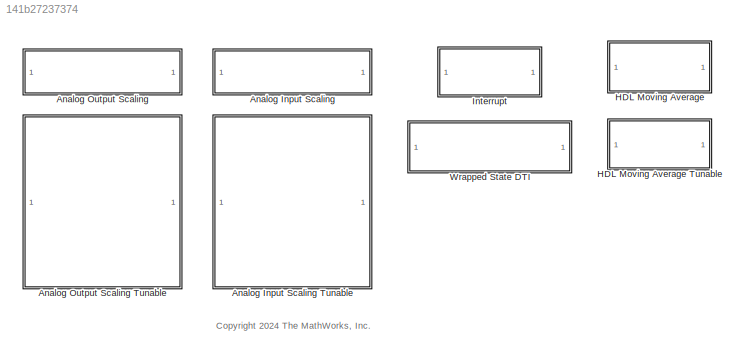
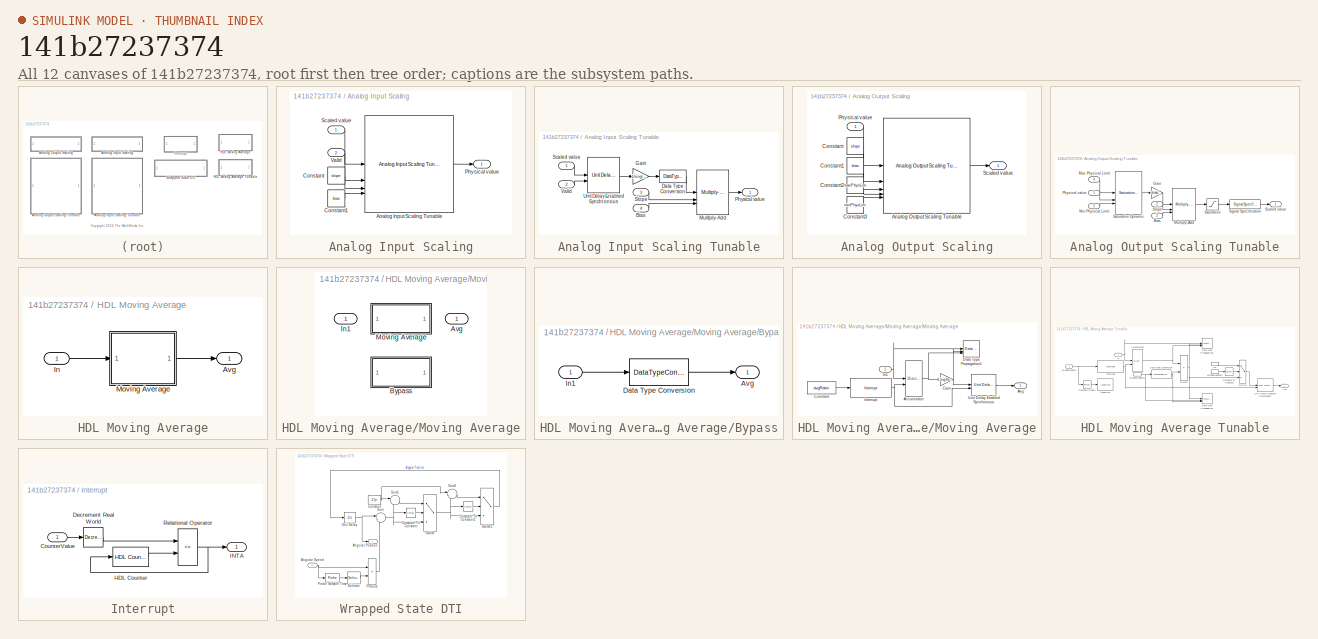
[diagram: thumbnail index - all 12 canvases of the model, root first then tree order]
MODEL slx_141b27237374
KIND library
CONFIG AbsTol = auto
CONFIG EnableMultiTasking = off
CONFIG FixedStep = auto
CONFIG MaxStep = auto
CONFIG MinStep = auto
CONFIG RelTol = 1e-3
CONFIG SampleTimeConstraint = Unconstrained
CONFIG SolverName = VariableStepAuto
CONFIG StartTime = 0.0
CONFIG StopTime = 10.0
BLOCK [SubSystem] Analog Input Scaling
  TreatAsAtomicUnit = on
BLOCK [SubSystem] Analog Input Scaling Tunable
BLOCK [Inport] Analog Input Scaling Tunable/Bias
  Port = 4
BLOCK [DataTypeConversion] Analog Input Scaling Tunable/Data Type Conversion
  RndMeth = Floor
  SaturateOnIntegerOverflow = off
BLOCK [Gain] Analog Input Scaling Tunable/Gain
  Gain = 1/single(intmax('int16'))
BLOCK [Reference] Analog Input Scaling Tunable/Multiply-Add  REF=hdlsllib/HDL Operations/Multiply-Add
  SourceBlock = hdlsllib/HDL Operations/Multiply-Add
  SourceType = Multiply-Add
BLOCK [Outport] Analog Input Scaling Tunable/Physical value
BLOCK [Inport] Analog Input Scaling Tunable/Scaled value
BLOCK [Inport] Analog Input Scaling Tunable/Slope
  Port = 3
BLOCK [Reference] Analog Input Scaling Tunable/Unit Delay Enabled Synchronous  REF=hdlsllib/Discrete/Unit Delay Enabled
Synchronous
  SourceBlock = hdlsllib/Discrete/Unit Delay Enabled\nSynchronous
  SourceType = Unit Delay Enabled Synchronous
BLOCK [Inport] Analog Input Scaling Tunable/Valid
  Port = 2
BLOCK [Reference] Analog Input Scaling/Analog Input Scaling Tunable  REF=$bdroot/Analog Input Scaling Tunable
  SourceBlock = $bdroot/Analog Input Scaling Tunable
  SourceType = SubSystem
BLOCK [Constant] Analog Input Scaling/Constant
  SampleTime = -1
  Value = slope
BLOCK [Constant] Analog Input Scaling/Constant1
  SampleTime = -1
  Value = bias
BLOCK [Outport] Analog Input Scaling/Physical value
BLOCK [Inport] Analog Input Scaling/Scaled value
BLOCK [Inport] Analog Input Scaling/Valid
  Port = 2
BLOCK [SubSystem] Analog Output Scaling
  TreatAsAtomicUnit = on
BLOCK [SubSystem] Analog Output Scaling Tunable
BLOCK [Inport] Analog Output Scaling Tunable/Bias
  Port = 3
BLOCK [Gain] Analog Output Scaling Tunable/Gain
  Gain = intmax('int16')
BLOCK [Inport] Analog Output Scaling Tunable/Max Physical Limit
  Port = 4
BLOCK [Inport] Analog Output Scaling Tunable/Min Physical Limit
  Port = 5
BLOCK [Reference] Analog Output Scaling Tunable/Multiply-Add  REF=hdlsllib/HDL Operations/Multiply-Add
  SourceBlock = hdlsllib/HDL Operations/Multiply-Add
  SourceType = Multiply-Add
BLOCK [Inport] Analog Output Scaling Tunable/Physical value
BLOCK [Saturate] Analog Output Scaling Tunable/Saturation
  LowerLimit = intmin('int16')
  UpperLimit = intmax('int16')
BLOCK [Reference] Analog Output Scaling Tunable/Saturation Dynamic  REF=simulink/Discontinuities/Saturation
Dynamic
  SourceBlock = simulink/Discontinuities/Saturation\nDynamic
  SourceType = Saturation Dynamic
BLOCK [Outport] Analog Output Scaling Tunable/Scaled value
BLOCK [SignalSpecification] Analog Output Scaling Tunable/Signal Specification
  OutDataTypeStr = int16
BLOCK [Inport] Analog Output Scaling Tunable/Slope
  Port = 2
BLOCK [Reference] Analog Output Scaling/Analog Output Scaling Tunable  REF=$bdroot/Analog Output Scaling Tunable
  SourceBlock = $bdroot/Analog Output Scaling Tunable
  SourceType = SubSystem
BLOCK [Constant] Analog Output Scaling/Constant
  OutDataTypeStr = Inherit: Inherit via back propagation
  SampleTime = -1
  Value = slope
BLOCK [Constant] Analog Output Scaling/Constant1
  OutDataTypeStr = Inherit: Inherit via back propagation
  SampleTime = -1
  Value = bias
BLOCK [Constant] Analog Output Scaling/Constant2
  OutDataTypeStr = Inherit: Inherit via back propagation
  SampleTime = -1
  Value = maxPhysLim
BLOCK [Constant] Analog Output Scaling/Constant3
  OutDataTypeStr = Inherit: Inherit via back propagation
  SampleTime = -1
  Value = minPhysLim
BLOCK [Inport] Analog Output Scaling/Physical value
BLOCK [Outport] Analog Output Scaling/Scaled value
BLOCK [SubSystem] HDL Moving Average
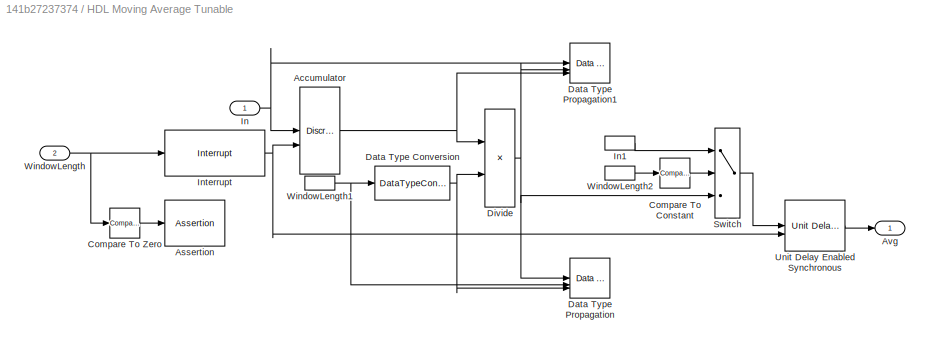
BLOCK [SubSystem] HDL Moving Average Tunable
BLOCK [DiscreteIntegrator] HDL Moving Average Tunable/Accumulator
  ExternalReset = falling
  ICPrevOutput = DiscIntNeverNeededParam
  ICPrevScaledInput = DiscIntNeverNeededParam
  InitialConditionSetting = Auto
  IntegratorMethod = Accumulation: Backward Euler
  OutDataTypeStr = Inherit: Inherit via back propagation
  SampleTime = -1
BLOCK [Assertion] HDL Moving Average Tunable/Assertion
BLOCK [Outport] HDL Moving Average Tunable/Avg
BLOCK [Reference] HDL Moving Average Tunable/Compare To Constant  REF=simulink/Logic and Bit
Operations/Compare
To Constant
  SourceBlock = simulink/Logic and Bit\nOperations/Compare\nTo Constant
  SourceType = Compare To Constant
BLOCK [Reference] HDL Moving Average Tunable/Compare To Zero  REF=simulink/Logic and Bit
Operations/Compare
To Zero
  SourceBlock = simulink/Logic and Bit\nOperations/Compare\nTo Zero
  SourceType = Compare To Zero
BLOCK [DataTypeConversion] HDL Moving Average Tunable/Data Type Conversion
  RndMeth = Floor
  SaturateOnIntegerOverflow = off
BLOCK [Reference] HDL Moving Average Tunable/Data Type Propagation  REF=simulink/Signal
Attributes/Data Type
Propagation
  SourceBlock = simulink/Signal\nAttributes/Data Type\nPropagation
  SourceType = Data Type Propagation
BLOCK [Reference] HDL Moving Average Tunable/Data Type Propagation1  REF=simulink/Signal
Attributes/Data Type
Propagation
  SourceBlock = simulink/Signal\nAttributes/Data Type\nPropagation
  SourceType = Data Type Propagation
BLOCK [Product] HDL Moving Average Tunable/Divide
  Inputs = */
  OutDataTypeStr = Inherit: Inherit via back propagation
  RndMeth = Simplest
  SaturateOnIntegerOverflow = on
BLOCK [Inport] HDL Moving Average Tunable/In
BLOCK [InportShadow] HDL Moving Average Tunable/In1
BLOCK [Reference] HDL Moving Average Tunable/Interrupt  REF=$bdroot/Interrupt
  SourceBlock = $bdroot/Interrupt
  SourceType = SubSystem
BLOCK [Switch] HDL Moving Average Tunable/Switch
  Criteria = u2 ~= 0
  SaturateOnIntegerOverflow = off
BLOCK [Reference] HDL Moving Average Tunable/Unit Delay Enabled Synchronous  REF=hdlsllib/Discrete/Unit Delay Enabled
Synchronous
  SourceBlock = hdlsllib/Discrete/Unit Delay Enabled\nSynchronous
  SourceType = Unit Delay Enabled Synchronous
BLOCK [Inport] HDL Moving Average Tunable/WindowLength
  Port = 2
BLOCK [InportShadow] HDL Moving Average Tunable/WindowLength1
  Port = 2
BLOCK [InportShadow] HDL Moving Average Tunable/WindowLength2
  Port = 2
BLOCK [Outport] HDL Moving Average/Avg
BLOCK [Inport] HDL Moving Average/In
BLOCK [SubSystem] HDL Moving Average/Moving Average
  Variant = on
  VariantControl = Moving Average
BLOCK [Outport] HDL Moving Average/Moving Average/Avg
BLOCK [SubSystem] HDL Moving Average/Moving Average/Bypass
  VariantControl = avgRatio == 1
BLOCK [Outport] HDL Moving Average/Moving Average/Bypass/Avg
BLOCK [DataTypeConversion] HDL Moving Average/Moving Average/Bypass/Data Type Conversion
  RndMeth = Floor
  SaturateOnIntegerOverflow = off
BLOCK [Inport] HDL Moving Average/Moving Average/Bypass/In1
BLOCK [Inport] HDL Moving Average/Moving Average/In1
BLOCK [SubSystem] HDL Moving Average/Moving Average/Moving Average
  VariantControl = avgRatio > 1
BLOCK [DiscreteIntegrator] HDL Moving Average/Moving Average/Moving Average/Accumulator
  ExternalReset = falling
  ICPrevOutput = DiscIntNeverNeededParam
  ICPrevScaledInput = DiscIntNeverNeededParam
  InitialConditionSetting = Auto
  IntegratorMethod = Accumulation: Backward Euler
  OutDataTypeStr = Inherit: Inherit via back propagation
  SampleTime = -1
BLOCK [Outport] HDL Moving Average/Moving Average/Moving Average/Avg
BLOCK [Constant] HDL Moving Average/Moving Average/Moving Average/Constant
  LockScale = on
  OutDataTypeStr = uint16
  SampleTime = -1
  Value = avgRatio
BLOCK [Reference] HDL Moving Average/Moving Average/Moving Average/Data Type Propagation1  REF=simulink/Signal
Attributes/Data Type
Propagation
  SourceBlock = simulink/Signal\nAttributes/Data Type\nPropagation
  SourceType = Data Type Propagation
BLOCK [Gain] HDL Moving Average/Moving Average/Moving Average/Gain
  Gain = 1/avgRatio
  LockScale = on
  OutDataTypeStr = Inherit: Inherit via back propagation
BLOCK [Inport] HDL Moving Average/Moving Average/Moving Average/In1
BLOCK [Reference] HDL Moving Average/Moving Average/Moving Average/Interrupt  REF=$bdroot/Interrupt
  SourceBlock = $bdroot/Interrupt
  SourceType = SubSystem
BLOCK [Reference] HDL Moving Average/Moving Average/Moving Average/Unit Delay Enabled Synchronous  REF=hdlsllib/Discrete/Unit Delay Enabled
Synchronous
  SourceBlock = hdlsllib/Discrete/Unit Delay Enabled\nSynchronous
  SourceType = Unit Delay Enabled Synchronous
BLOCK [SubSystem] Interrupt
  TreatAsAtomicUnit = on
BLOCK [Inport] Interrupt/CounterValue
BLOCK [Reference] Interrupt/Decrement Real World  REF=hdlsllib/Math
Operations/Decrement
Real World
  SourceBlock = hdlsllib/Math\nOperations/Decrement\nReal World
  SourceType = Real World Value Decrement
BLOCK [Reference] Interrupt/HDL Counter  REF=hdlsllib/Sources/HDL Counter
  SourceBlock = hdlsllib/Sources/HDL Counter
  SourceType = HDL Counter
BLOCK [Outport] Interrupt/INTA
  VectorParamsAs1DForOutWhenUnconnected = off
BLOCK [RelationalOperator] Interrupt/Relational Operator
  InputSameDT = off
  Operator = <=
  OutDataTypeStr = boolean
  RndMeth = Simplest
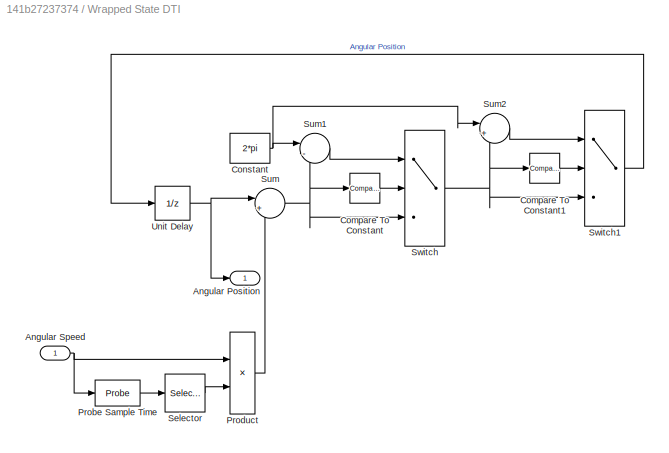
BLOCK [SubSystem] Wrapped State DTI
BLOCK [Outport] Wrapped State DTI/Angular Position
BLOCK [Inport] Wrapped State DTI/Angular Speed
BLOCK [Reference] Wrapped State DTI/Compare To Constant  REF=simulink/Logic and Bit
Operations/Compare
To Constant
  SourceBlock = simulink/Logic and Bit\nOperations/Compare\nTo Constant
  SourceType = Compare To Constant
BLOCK [Reference] Wrapped State DTI/Compare To Constant1  REF=simulink/Logic and Bit
Operations/Compare
To Constant
  SourceBlock = simulink/Logic and Bit\nOperations/Compare\nTo Constant
  SourceType = Compare To Constant
BLOCK [Constant] Wrapped State DTI/Constant
  OutDataTypeStr = Inherit: Inherit via back propagation
  SampleTime = -1
  Value = 2*pi
BLOCK [Probe] Wrapped State DTI/Probe Sample Time
  ProbeComplexSignal = off
  ProbeSampleTimeDataType = Same as input
  ProbeWidth = off
BLOCK [Product] Wrapped State DTI/Product
BLOCK [Selector] Wrapped State DTI/Selector
  IndexOptions = Index vector (dialog)
  Indices = 1
  InputPortWidth = 2
  OutputSizes = 1
BLOCK [Sum] Wrapped State DTI/Sum
  Inputs = |++
BLOCK [Sum] Wrapped State DTI/Sum1
  Inputs = |-+
BLOCK [Sum] Wrapped State DTI/Sum2
  Inputs = |++
BLOCK [Switch] Wrapped State DTI/Switch
  Criteria = u2 > Threshold
  InputSameDT = off
  SaturateOnIntegerOverflow = off
BLOCK [Switch] Wrapped State DTI/Switch1
  Criteria = u2 > Threshold
  InputSameDT = off
  SaturateOnIntegerOverflow = off
BLOCK [UnitDelay] Wrapped State DTI/Unit Delay
  HasFrameUpgradeWarning = on
  SampleTime = -1
ANNOTATION (root): <copyright redacted>
LINE Analog Input Scaling Tunable/Bias:1 -> Analog Input Scaling Tunable/Multiply-Add:3
LINE Analog Input Scaling Tunable/Data Type Conversion:1 -> Analog Input Scaling Tunable/Multiply-Add:1
LINE Analog Input Scaling Tunable/Gain:1 -> Analog Input Scaling Tunable/Data Type Conversion:1
LINE Analog Input Scaling Tunable/Multiply-Add:1 -> Analog Input Scaling Tunable/Physical value:1
LINE Analog Input Scaling Tunable/Scaled value:1 -> Analog Input Scaling Tunable/Unit Delay Enabled Synchronous:1
LINE Analog Input Scaling Tunable/Slope:1 -> Analog Input Scaling Tunable/Multiply-Add:2
LINE Analog Input Scaling Tunable/Unit Delay Enabled Synchronous:1 -> Analog Input Scaling Tunable/Gain:1
LINE Analog Input Scaling Tunable/Valid:1 -> Analog Input Scaling Tunable/Unit Delay Enabled Synchronous:2
LINE Analog Input Scaling/Analog Input Scaling Tunable:1 -> Analog Input Scaling/Physical value:1
LINE Analog Input Scaling/Constant1:1 -> Analog Input Scaling/Analog Input Scaling Tunable:4
LINE Analog Input Scaling/Constant:1 -> Analog Input Scaling/Analog Input Scaling Tunable:3
LINE Analog Input Scaling/Scaled value:1 -> Analog Input Scaling/Analog Input Scaling Tunable:1
LINE Analog Input Scaling/Valid:1 -> Analog Input Scaling/Analog Input Scaling Tunable:2
LINE Analog Output Scaling Tunable/Bias:1 -> Analog Output Scaling Tunable/Multiply-Add:3
LINE Analog Output Scaling Tunable/Gain:1 -> Analog Output Scaling Tunable/Multiply-Add:1
LINE Analog Output Scaling Tunable/Max Physical Limit:1 -> Analog Output Scaling Tunable/Saturation Dynamic:1
LINE Analog Output Scaling Tunable/Min Physical Limit:1 -> Analog Output Scaling Tunable/Saturation Dynamic:3
LINE Analog Output Scaling Tunable/Multiply-Add:1 -> Analog Output Scaling Tunable/Saturation:1
LINE Analog Output Scaling Tunable/Physical value:1 -> Analog Output Scaling Tunable/Saturation Dynamic:2
LINE Analog Output Scaling Tunable/Saturation Dynamic:1 -> Analog Output Scaling Tunable/Gain:1
LINE Analog Output Scaling Tunable/Saturation:1 -> Analog Output Scaling Tunable/Signal Specification:1
LINE Analog Output Scaling Tunable/Signal Specification:1 -> Analog Output Scaling Tunable/Scaled value:1
LINE Analog Output Scaling Tunable/Slope:1 -> Analog Output Scaling Tunable/Multiply-Add:2
LINE Analog Output Scaling/Analog Output Scaling Tunable:1 -> Analog Output Scaling/Scaled value:1
LINE Analog Output Scaling/Constant1:1 -> Analog Output Scaling/Analog Output Scaling Tunable:3
LINE Analog Output Scaling/Constant2:1 -> Analog Output Scaling/Analog Output Scaling Tunable:4
LINE Analog Output Scaling/Constant3:1 -> Analog Output Scaling/Analog Output Scaling Tunable:5
LINE Analog Output Scaling/Constant:1 -> Analog Output Scaling/Analog Output Scaling Tunable:2
LINE Analog Output Scaling/Physical value:1 -> Analog Output Scaling/Analog Output Scaling Tunable:1
NET HDL Moving Average Tunable/Accumulator:1 -> HDL Moving Average Tunable/Data Type Propagation1:3, HDL Moving Average Tunable/Divide:1
LINE HDL Moving Average Tunable/Compare To Constant:1 -> HDL Moving Average Tunable/Switch:2
LINE HDL Moving Average Tunable/Compare To Zero:1 -> HDL Moving Average Tunable/Assertion:1
NET HDL Moving Average Tunable/Data Type Conversion:1 -> HDL Moving Average Tunable/Data Type Propagation:3, HDL Moving Average Tunable/Divide:2
NET HDL Moving Average Tunable/Divide:1 -> HDL Moving Average Tunable/Data Type Propagation1:2, HDL Moving Average Tunable/Data Type Propagation:1, HDL Moving Average Tunable/Switch:3
LINE HDL Moving Average Tunable/In1:1 -> HDL Moving Average Tunable/Switch:1
NET HDL Moving Average Tunable/In:1 -> HDL Moving Average Tunable/Accumulator:1, HDL Moving Average Tunable/Data Type Propagation1:1
NET HDL Moving Average Tunable/Interrupt:1 -> HDL Moving Average Tunable/Accumulator:2, HDL Moving Average Tunable/Unit Delay Enabled Synchronous:2
LINE HDL Moving Average Tunable/Switch:1 -> HDL Moving Average Tunable/Unit Delay Enabled Synchronous:1
LINE HDL Moving Average Tunable/Unit Delay Enabled Synchronous:1 -> HDL Moving Average Tunable/Avg:1
NET HDL Moving Average Tunable/WindowLength1:1 -> HDL Moving Average Tunable/Data Type Conversion:1, HDL Moving Average Tunable/Data Type Propagation:2
LINE HDL Moving Average Tunable/WindowLength2:1 -> HDL Moving Average Tunable/Compare To Constant:1
NET HDL Moving Average Tunable/WindowLength:1 -> HDL Moving Average Tunable/Compare To Zero:1, HDL Moving Average Tunable/Interrupt:1
LINE HDL Moving Average/In:1 -> HDL Moving Average/Moving Average:1
LINE HDL Moving Average/Moving Average/Bypass/Data Type Conversion:1 -> HDL Moving Average/Moving Average/Bypass/Avg:1
LINE HDL Moving Average/Moving Average/Bypass/In1:1 -> HDL Moving Average/Moving Average/Bypass/Data Type Conversion:1
NET HDL Moving Average/Moving Average/Moving Average/Accumulator:1 -> HDL Moving Average/Moving Average/Moving Average/Data Type Propagation1:3, HDL Moving Average/Moving Average/Moving Average/Gain:1
LINE HDL Moving Average/Moving Average/Moving Average/Constant:1 -> HDL Moving Average/Moving Average/Moving Average/Interrupt:1
NET HDL Moving Average/Moving Average/Moving Average/Gain:1 -> HDL Moving Average/Moving Average/Moving Average/Data Type Propagation1:2, HDL Moving Average/Moving Average/Moving Average/Unit Delay Enabled Synchronous:1
NET HDL Moving Average/Moving Average/Moving Average/In1:1 -> HDL Moving Average/Moving Average/Moving Average/Accumulator:1, HDL Moving Average/Moving Average/Moving Average/Data Type Propagation1:1
NET HDL Moving Average/Moving Average/Moving Average/Interrupt:1 -> HDL Moving Average/Moving Average/Moving Average/Accumulator:2, HDL Moving Average/Moving Average/Moving Average/Unit Delay Enabled Synchronous:2
LINE HDL Moving Average/Moving Average/Moving Average/Unit Delay Enabled Synchronous:1 -> HDL Moving Average/Moving Average/Moving Average/Avg:1
LINE HDL Moving Average/Moving Average:1 -> HDL Moving Average/Avg:1
LINE Interrupt/CounterValue:1 -> Interrupt/Decrement Real World:1
LINE Interrupt/Decrement Real World:1 -> Interrupt/Relational Operator:1
LINE Interrupt/HDL Counter:1 -> Interrupt/Relational Operator:2
NET Interrupt/Relational Operator:1 -> Interrupt/HDL Counter:1, Interrupt/INTA:1
NET Wrapped State DTI/Angular Speed:1 -> Wrapped State DTI/Probe Sample Time:1, Wrapped State DTI/Product:1
LINE Wrapped State DTI/Compare To Constant1:1 -> Wrapped State DTI/Switch1:2
LINE Wrapped State DTI/Compare To Constant:1 -> Wrapped State DTI/Switch:2
NET Wrapped State DTI/Constant:1 -> Wrapped State DTI/Sum1:1, Wrapped State DTI/Sum2:1
LINE Wrapped State DTI/Probe Sample Time:1 -> Wrapped State DTI/Selector:1
LINE Wrapped State DTI/Product:1 -> Wrapped State DTI/Sum:2
LINE Wrapped State DTI/Selector:1 -> Wrapped State DTI/Product:2
LINE Wrapped State DTI/Sum1:1 -> Wrapped State DTI/Switch:1
LINE Wrapped State DTI/Sum2:1 -> Wrapped State DTI/Switch1:1
NET Wrapped State DTI/Sum:1 -> Wrapped State DTI/Compare To Constant:1, Wrapped State DTI/Sum1:2, Wrapped State DTI/Switch:3
LINE Wrapped State DTI/Switch1:1 -> Wrapped State DTI/Unit Delay:1
NET Wrapped State DTI/Switch:1 -> Wrapped State DTI/Compare To Constant1:1, Wrapped State DTI/Sum2:2, Wrapped State DTI/Switch1:3
NET Wrapped State DTI/Unit Delay:1 -> Wrapped State DTI/Angular Position:1, Wrapped State DTI/Sum:1
note: NET lines group one-source signal fan-out (src -> all destinations, sorted); 1:1 wires keep LINE
